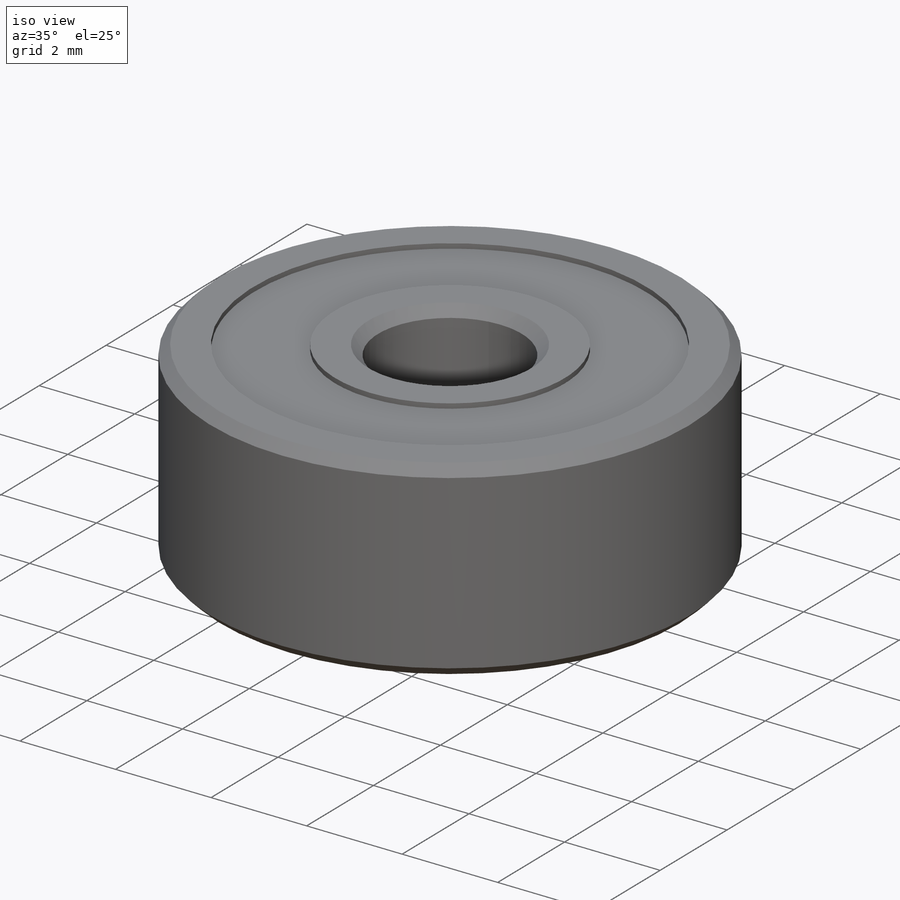
[diagram: iso view]
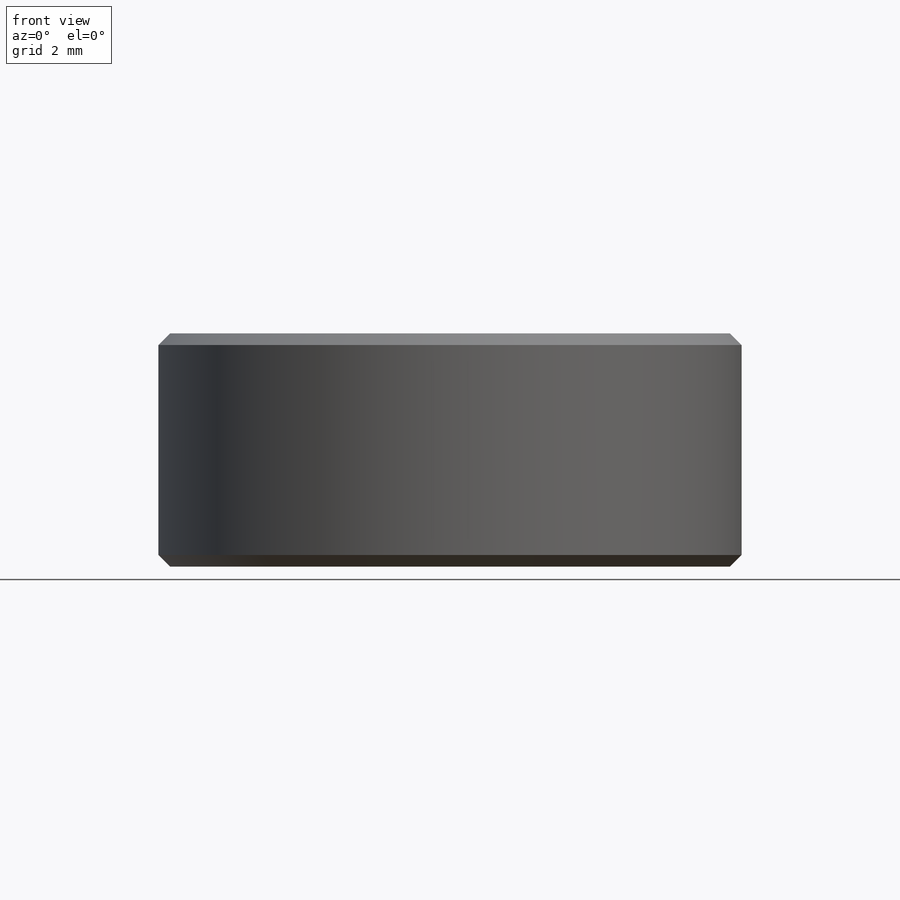
[diagram: front view]
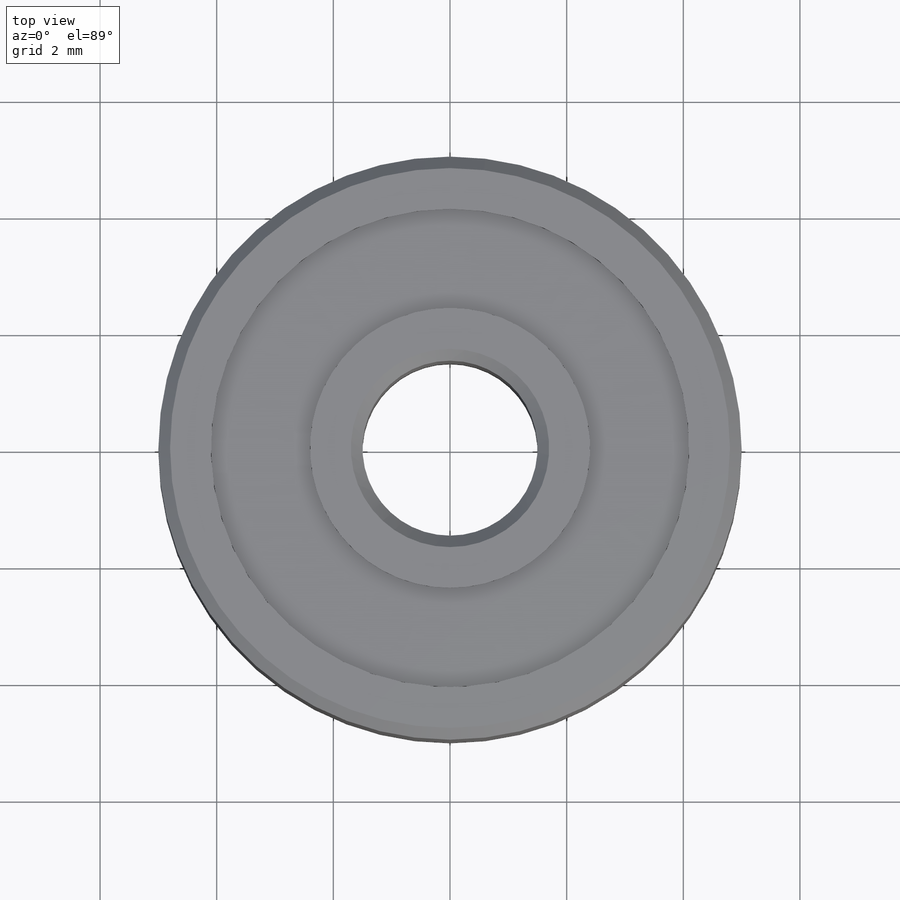
[diagram: top view]
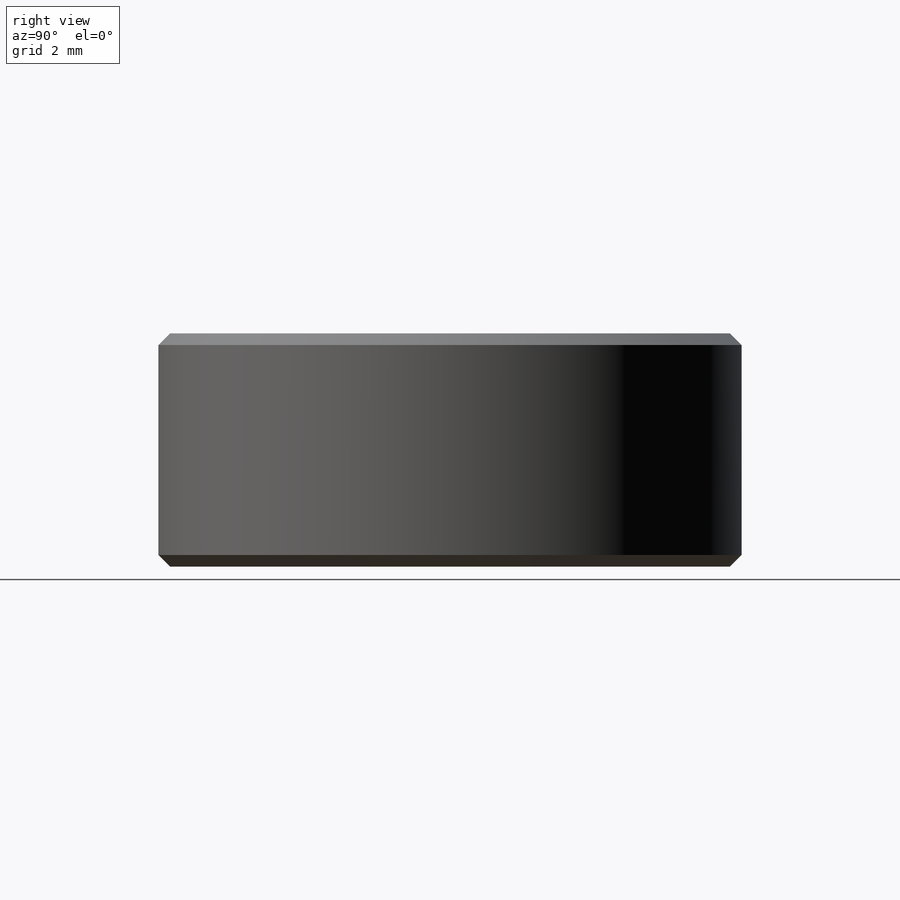
[diagram: right view]
SOLIDWORKS PART (.sldprt)
format: sldprt  version: not decoded by parser v0  size: 259,584 bytes
history: native  units: mm
features: sketch x4, plane x3, extrude x2, chamfer x2, cut_extrude x2, material x1 (+9 scaffold rows collapsed)
feature tree (23):
  scaffold x9  (default folders/planes/origin — collapsed)
  material  "Material <sin especificar>"
  plane  "Alzado"
  plane  "Planta"
  plane  "Vista lateral"
  sketch  "Croquis1"  dims[c1.D1=10.0mm c1.D2=3.0mm c1.D3=~7.252986mm c1.D4=~3.899076mm c2.D3=0.9mm c2.D4=0.9mm]
  extrude  "Saliente-Extruir1"  Depth=4mm
  extrude  "Saliente-Extruir2"  [1 undecoded]
  sketch  "Croquis1<3>"  dims[D1=4.0mm]
  chamfer  "Chaflán1"  Distance=0.2mm Angle=45deg
  chamfer  "Chaflán2"  Distance=0.2mm Angle=45deg
  sketch  "Croquis2"  dims[D1=8.2mm D2=4.8mm]
  cut_extrude  "Cortar-Extruir1"  Depth=0.1mm
  sketch  "Croquis3"  dims[D1=4.8mm D2=8.2mm]
  cut_extrude  "Cortar-Extruir2"  Depth=0.1mm
decode coverage: 9 of 10 modeling features carry decoded parameters
note: ~ marks probable driven/reference dimensions
note: 1 parameter value undecoded
note: suppression state not decoded; provenance and decode notes live in map.json
